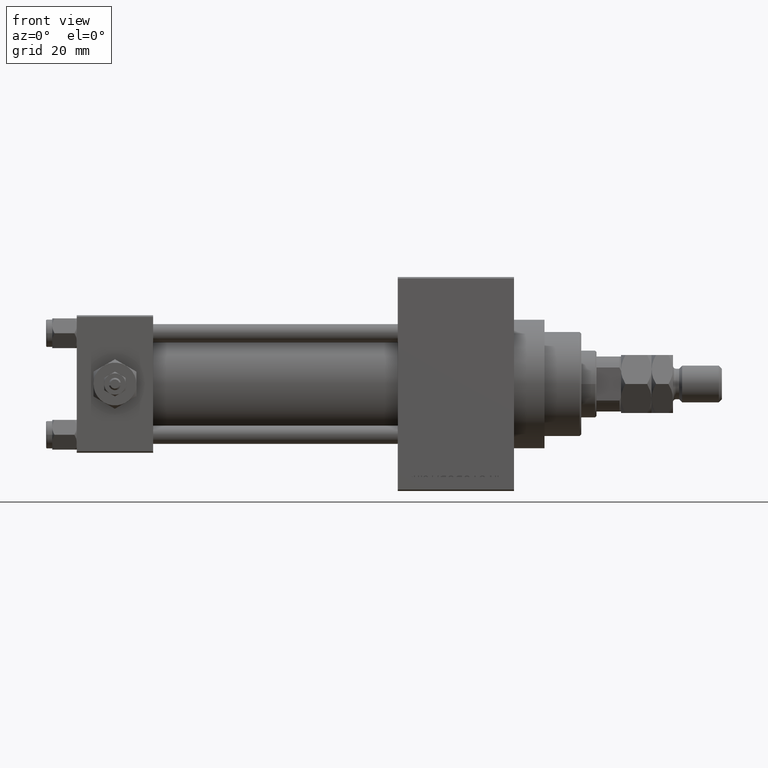
[diagram: clean part render]
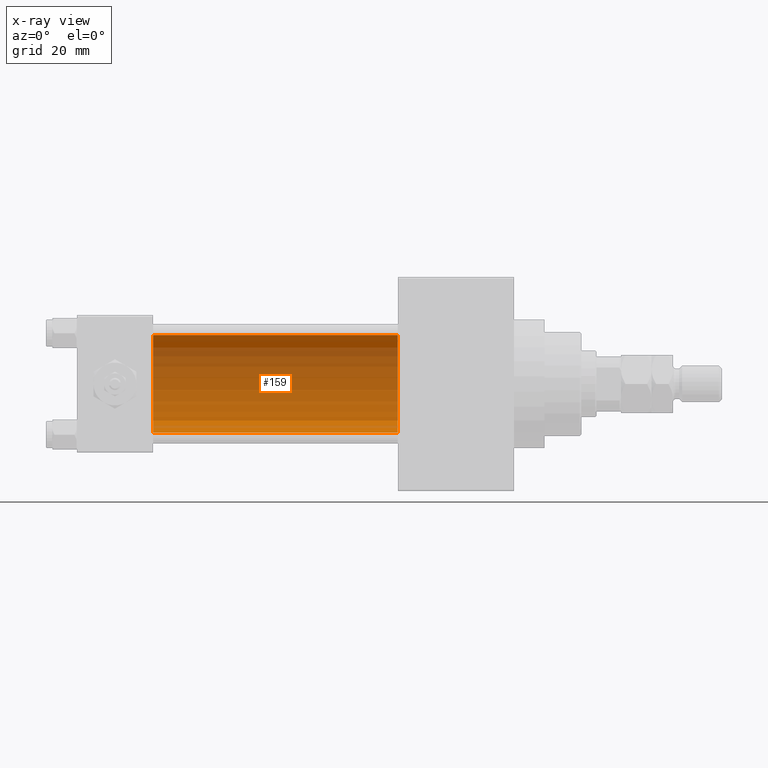
[diagram: x-ray — body ghosted, one internal face saturated and labeled with its STEP entity id]
A machine part, front view, then the same camera in x-ray: the body is ghosted and one INTERNAL B-rep face — a face not visible from any outside direction — is saturated and labeled: STEP entity #159.
In plain terms, the highlighted cylindrical surface (partial cylindrical patch) has radius 16 mm, axis along (-1, -0, -0).
Its self-contained STEP definition (entity closure, byte-faithful):
#159 = ADVANCED_FACE ( 'NONE', ( #40418 ), #36605, .F. ) ;
#2193 = AXIS2_PLACEMENT_3D ( 'NONE', #39791, #8044, #35737 ) ;
#3945 = CARTESIAN_POINT ( 'NONE',  ( 105.0000000000000142, -2.602085213965210642E-15, 16.00000000000000000 ) ) ;
#4575 = VERTEX_POINT ( 'NONE', #10752 ) ;
#8044 = DIRECTION ( 'NONE',  ( 1.000000000000000000, 0.000000000000000000, 0.000000000000000000 ) ) ;
#9425 = DIRECTION ( 'NONE',  ( 0.000000000000000000, 0.000000000000000000, 1.000000000000000000 ) ) ;
#9541 = AXIS2_PLACEMENT_3D ( 'NONE', #24992, #40516, #21184 ) ;
#10752 = CARTESIAN_POINT ( 'NONE',  ( 105.0000000000000142, -6.426503353294456087E-16, -16.00000000000000000 ) ) ;
#11286 = LINE ( 'NONE', #38719, #23416 ) ;
#11397 = ORIENTED_EDGE ( 'NONE', *, *, #13194, .F. ) ;
#13194 = EDGE_CURVE ( 'NONE', #18293, #29261, #35440, .T. ) ;
#15979 = CARTESIAN_POINT ( 'NONE',  ( 105.0000000000000142, -2.602085213965210642E-15, 16.00000000000000000 ) ) ;
#16554 = EDGE_CURVE ( 'NONE', #4575, #18293, #11286, .T. ) ;
#18293 = VERTEX_POINT ( 'NONE', #34243 ) ;
#20847 = VERTEX_POINT ( 'NONE', #3945 ) ;
#21184 = DIRECTION ( 'NONE',  ( 0.000000000000000000, 0.000000000000000000, -1.000000000000000000 ) ) ;
#23077 = CARTESIAN_POINT ( 'NONE',  ( 25.00000000000000000, -2.602085213965210642E-15, 16.00000000000000000 ) ) ;
#23416 = VECTOR ( 'NONE', #42034, 1000.000000000000000 ) ;
#23440 = ORIENTED_EDGE ( 'NONE', *, *, #33700, .T. ) ;
#24992 = CARTESIAN_POINT ( 'NONE',  ( 105.0000000000000142, -2.602085213965210642E-15, 0.000000000000000000 ) ) ;
#25399 = CARTESIAN_POINT ( 'NONE',  ( 105.0000000000000142, -2.602085213965210642E-15, 0.000000000000000000 ) ) ;
#26822 = EDGE_CURVE ( 'NONE', #20847, #29261, #42937, .T. ) ;
#29261 = VERTEX_POINT ( 'NONE', #23077 ) ;
#33271 = AXIS2_PLACEMENT_3D ( 'NONE', #25399, #37102, #9425 ) ;
#33700 = EDGE_CURVE ( 'NONE', #4575, #20847, #37927, .T. ) ;
#34243 = CARTESIAN_POINT ( 'NONE',  ( 25.00000000000000000, -6.426503353294456087E-16, -16.00000000000000000 ) ) ;
#35440 = CIRCLE ( 'NONE', #2193, 16.00000000000000000 ) ;
#35737 = DIRECTION ( 'NONE',  ( 0.000000000000000000, 0.000000000000000000, -1.000000000000000000 ) ) ;
#36605 = CYLINDRICAL_SURFACE ( 'NONE', #33271, 16.00000000000000000 ) ;
#37102 = DIRECTION ( 'NONE',  ( -1.000000000000000000, -0.000000000000000000, -0.000000000000000000 ) ) ;
#37773 = EDGE_LOOP ( 'NONE', ( #45014, #23440, #39567, #11397 ) ) ;
#37927 = CIRCLE ( 'NONE', #9541, 16.00000000000000000 ) ;
#38719 = CARTESIAN_POINT ( 'NONE',  ( 105.0000000000000142, -6.426503353294456087E-16, -16.00000000000000000 ) ) ;
#39567 = ORIENTED_EDGE ( 'NONE', *, *, #26822, .T. ) ;
#39791 = CARTESIAN_POINT ( 'NONE',  ( 25.00000000000000000, -2.602085213965210642E-15, 0.000000000000000000 ) ) ;
#40418 = FACE_OUTER_BOUND ( 'NONE', #37773, .T. ) ;
#40516 = DIRECTION ( 'NONE',  ( 1.000000000000000000, 0.000000000000000000, 0.000000000000000000 ) ) ;
#41849 = VECTOR ( 'NONE', #46978, 1000.000000000000000 ) ;
#42034 = DIRECTION ( 'NONE',  ( -1.000000000000000000, -0.000000000000000000, -0.000000000000000000 ) ) ;
#42937 = LINE ( 'NONE', #15979, #41849 ) ;
#45014 = ORIENTED_EDGE ( 'NONE', *, *, #16554, .F. ) ;
#46978 = DIRECTION ( 'NONE',  ( -1.000000000000000000, -0.000000000000000000, -0.000000000000000000 ) ) ;